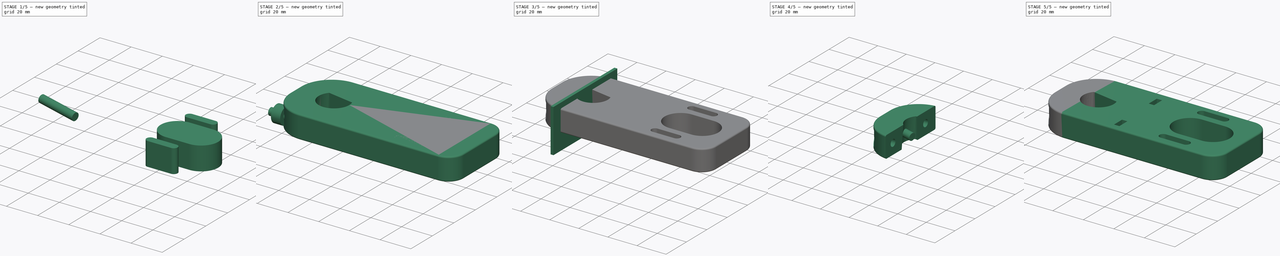
[diagram: build sequence overview — one tinted view per stage of 5, left to right]
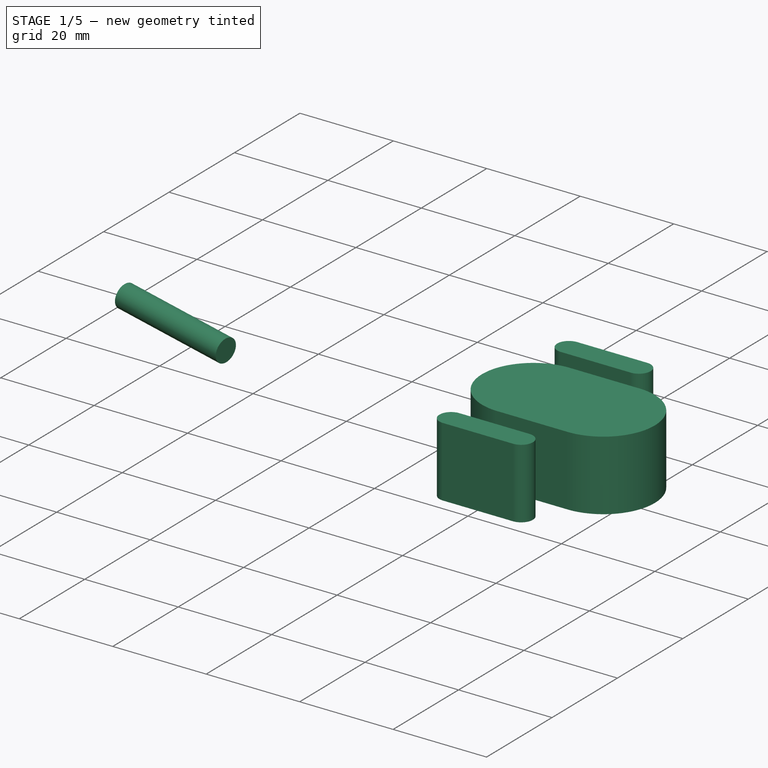
[diagram: stage 1 of 5 — iso view after this stage's code; geometry added in this stage tinted green]
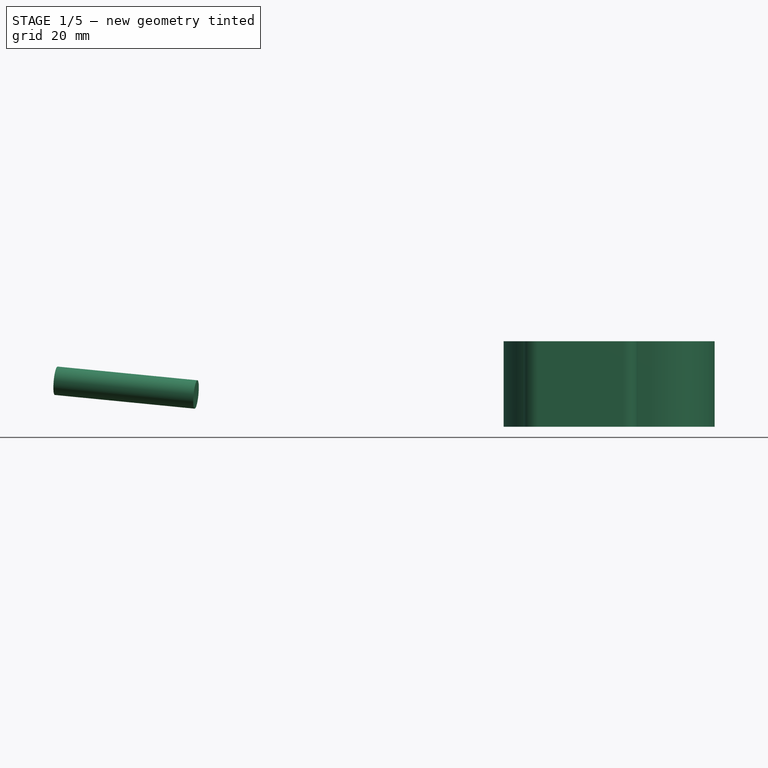
[diagram: stage 1 of 5 — front view after this stage's code; geometry added in this stage tinted green]
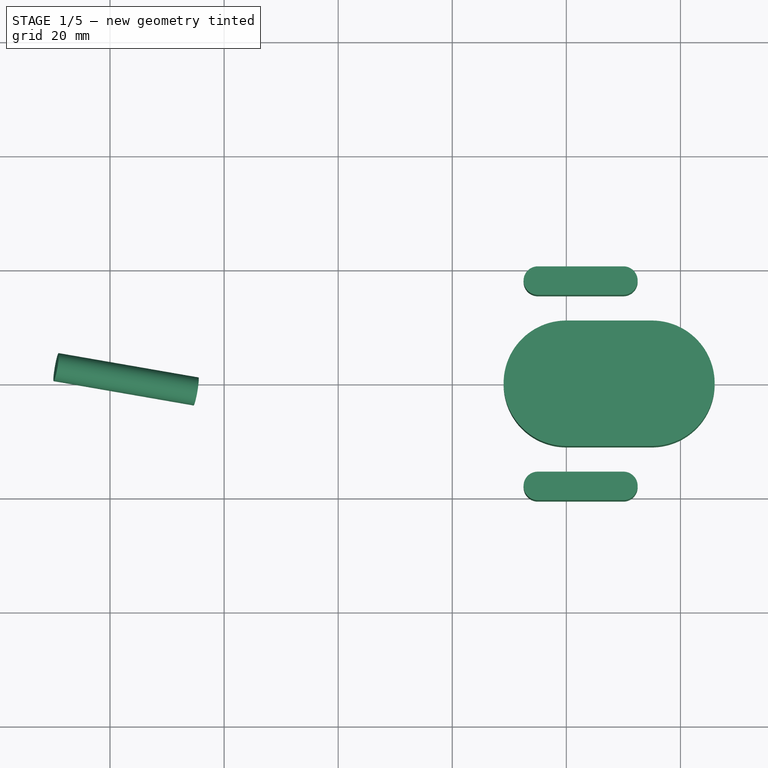
[diagram: stage 1 of 5 — top view after this stage's code; geometry added in this stage tinted green]
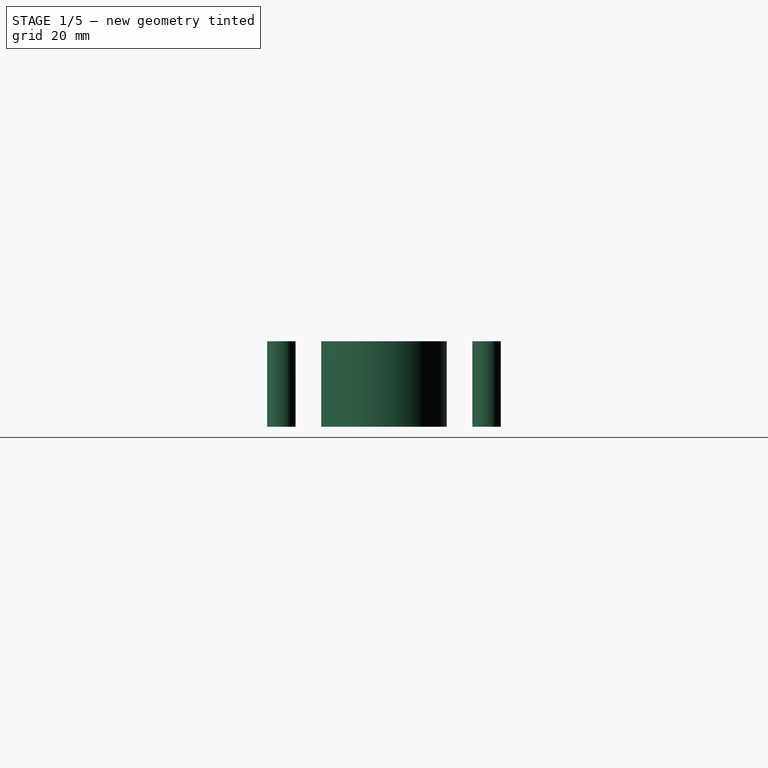
[diagram: stage 1 of 5 — right view after this stage's code; geometry added in this stage tinted green]
FCSTD DOCUMENT  (FreeCAD 0.19R21329 (Git))
Label: ElectricLongboard_MotorMount
License: All rights reserved
LicenseURL: http://en.wikipedia.org/wiki/All_rights_reserved
objects: Sketcher::SketchObject×8, Part::Extrusion×7, Part::Cut×6, Part::FeaturePython×5, PartDesign::ShapeBinder×3, Spreadsheet::Sheet×1, PartDesign::Pad×1, Part::Fillet×1, PartDesign::Body×1, App::DocumentObjectGroup×1
note: 33 computed .brp shape members not serialized (recipe doc carries the construction recipe); baked Part::Feature solids carry a one-line shape summary decoded from their .brp

FEATURE [Sketcher::SketchObject] Sketch  label="Rectangle"
  MapMode = 5
  Support = -> [XY_Plane]
  expr: Constraints[8] = (<<vars>>.radius1 + <<vars>>.aroundhole) * 2
  expr: Constraints[11] = <<vars>>.radius1 + <<vars>>.aroundhole
  expr: Constraints[10] = <<vars>>.radius1 + <<vars>>.aroundhole
  sketch-geometry (4):
    g0: LineSegment StartX=-25 StartY=25 StartZ=0 EndX=95 EndY=25 EndZ=0
    g1: LineSegment StartX=95 StartY=25 StartZ=0 EndX=95 EndY=-25 EndZ=0
    g2: LineSegment StartX=95 StartY=-25 StartZ=0 EndX=-25 EndY=-25 EndZ=0
    g3: LineSegment StartX=-25 StartY=-25 StartZ=0 EndX=-25 EndY=25 EndZ=0
  constraints (12):
    c: Coincident(g0,g1)
    c: Coincident(g1,g2)
    c: Coincident(g2,g3)
    c: Coincident(g3,g0)
    c: Horizontal(g0)
    c: Horizontal(g2)
    c: Vertical(g1)
    c: Vertical(g3)
    c: DistanceY(g3,g3) = 50
    c: DistanceX(g0,g0) = 120
    c: DistanceY(g-1,g0) = 25
    c: DistanceX(g0,g-1) = 25
FEATURE [Spreadsheet::Sheet] Spreadsheet  label="vars"
  cells = A1=radius1; B1(radius1)=10; A2=radius2; B2(radius2)=10; A3=space around hole; B3(aroundhole)=15; A4=thickness; B4(thick)=15; A5=radius motor; B5(radius_motor)=34; A6=motor fixation holes distance; B6(motorfixholesdist)=36
FEATURE [PartDesign::Pad] Pad
  AllowMultiFace = false
  Length = 15
  Length2 = 100
  Profile = -> Sketch
  Type = 0
  expr: Length = <<vars>>.thick
FEATURE [Sketcher::SketchObject] Sketch001  label="Hole"
  AttachmentOffset = pos=(0,0,0) rot=(0,0,1;-0.174533rad)
  MapMode = 5
  Placement = pos=(0,0,15) rot=(0,0,1;6.10865rad)
  Support = -> [Pad]
  expr: Constraints[0] = <<vars>>.radius1
  expr: Constraints[5] = <<vars>>.radius1 - 5
  sketch-geometry (2):
    g0: ArcOfCircle CenterX=0 CenterY=0 CenterZ=0 NormalX=0 NormalY=0 NormalZ=1 AngleXU=0 Radius=10 StartAngle=2.61799 EndAngle=6.80678
    g1: LineSegment StartX=-8.66025 StartY=5 StartZ=0 EndX=8.66025 EndY=5 EndZ=0
  constraints (6):
    c: Radius(g0) = 10
    c: Coincident(g0,g-1)
    c: Horizontal(g1)
    c: Coincident(g1,g0)
    c: Coincident(g1,g0)
    c: DistanceY(g0,g0) = 5
FEATURE [Part::Extrusion] Extrude001  label="ExtrudeHole"
  Base = -> Sketch001
  Dir = (0.03,0,0.5)
  DirMode = 0
  FaceMakerClass = Part::FaceMakerBullseye
  LengthFwd = 0
  LengthRev = 30
  Solid = true
  Symmetric = false
  TaperAngleRev = 3
  expr: LengthRev = <<vars>>.thick * 2
FEATURE [Sketcher::SketchObject] Sketch006  label="SketchHolesMotor"
  MapMode = 5
  Placement = pos=(0,0,15) rot=(0,0,1;0rad)
  expr: Constraints[21] = <<vars>>.motorfixholesdist
  expr: Constraints[1] = <<vars>>.motorfixholesdist / 2
  sketch-geometry (12):
    g0: ArcOfCircle CenterX=55 CenterY=-18 CenterZ=0 NormalX=0 NormalY=0 NormalZ=1 AngleXU=0 Radius=2.5 StartAngle=1.5708 EndAngle=4.71239
    g1: ArcOfCircle CenterX=70 CenterY=-18 CenterZ=0 NormalX=0 NormalY=0 NormalZ=1 AngleXU=0 Radius=2.5 StartAngle=4.71239 EndAngle=7.85398
    g2: LineSegment StartX=55 StartY=-15.5 StartZ=0 EndX=70 EndY=-15.5 EndZ=0
    g3: LineSegment StartX=55 StartY=-20.5 StartZ=0 EndX=70 EndY=-20.5 EndZ=0
    g4: ArcOfCircle CenterX=55 CenterY=18 CenterZ=0 NormalX=0 NormalY=0 NormalZ=1 AngleXU=0 Radius=2.5 StartAngle=1.5708 EndAngle=4.71239
    g5: ArcOfCircle CenterX=70 CenterY=18 CenterZ=0 NormalX=0 NormalY=0 NormalZ=1 AngleXU=0 Radius=2.5 StartAngle=4.71239 EndAngle=7.85398
    g6: LineSegment StartX=55 StartY=20.5 StartZ=0 EndX=70 EndY=20.5 EndZ=0
    g7: LineSegment StartX=55 StartY=15.5 StartZ=0 EndX=70 EndY=15.5 EndZ=0
    g8: ArcOfCircle CenterX=60 CenterY=0 CenterZ=0 NormalX=0 NormalY=0 NormalZ=1 AngleXU=0 Radius=11 StartAngle=1.5708 EndAngle=4.71239
    g9: ArcOfCircle CenterX=75 CenterY=0 CenterZ=0 NormalX=0 NormalY=0 NormalZ=1 AngleXU=0 Radius=11 StartAngle=4.71239 EndAngle=7.85398
    g10: LineSegment StartX=60 StartY=11 StartZ=0 EndX=75 EndY=11 EndZ=0
    g11: LineSegment StartX=60 StartY=-11 StartZ=0 EndX=75 EndY=-11 EndZ=0
  constraints (42):
    c: Radius(g0) = 2.5
    c: DistanceY(g0,g-1) = 18
    c: Equal(g1,g0)
    c: DistanceY(g1,g0) = 0
    c: Coincident(g0,g2)
    c: Coincident(g0,g3)
    c: Coincident(g1,g3)
    c: Coincident(g1,g2)
    c: Radius(g4) = 2.5
    c: Equal(g4,g5)
    c: DistanceY(g4,g5) = 0
    c: Coincident(g5,g7)
    c: Coincident(g5,g6)
    c: DistanceX(g4,g4) = 0
    c: DistanceX(g4,g4) = 0
    c: DistanceX(g5,g5) = 0
    c: DistanceX(g5,g5) = 0
    c: Coincident(g4,g6)
    c: Coincident(g4,g7)
    c: DistanceX(g4,g0) = 0
    c: DistanceX(g5,g1) = 0
    c: DistanceY(g0,g4) = 36
    c: DistanceX(g0,g0) = 0
    c: DistanceX(g0,g0) = 0
    c: DistanceX(g1,g1) = 0
    c: DistanceX(g1,g1) = 0
    c: DistanceY(g8,g9) = 0
    c: Radius(g8) = 11
    c: Equal(g8,g9)
    c: Coincident(g8,g10)
    c: Coincident(g8,g11)
    c: Coincident(g9,g11)
    c: Coincident(g9,g10)
    c: DistanceX(g8,g8) = 0
    c: DistanceX(g9,g9) = 0
    c: DistanceX(g8,g8) = 0
    c: DistanceX(g9,g9) = 0
    c: DistanceY(g-1,g8) = 0
    c: DistanceX(g-1,g8) = 60
    c: DistanceX(g8,g4) = -5
    c: DistanceX(g8,g9) = 15
    c: DistanceX(g5,g9) = 5
FEATURE [Part::Extrusion] Extrude006  label="ExtrudeHolesMotor"
  Base = -> Sketch006
  Dir = (0,0,1)
  DirMode = 2
  FaceMakerClass = Part::FaceMakerBullseye
  LengthFwd = 0
  LengthRev = 15
  Solid = true
  Symmetric = false
  expr: LengthRev = <<vars>>.thick
FEATURE [Sketcher::SketchObject] Sketch008  label="Sketch_TruckHole"
  AttachmentOffset = pos=(0,0,0) rot=(0,1,0;1.5708rad)
  MapMode = 45
  Placement = pos=(-4.18731,6.47725,-0.486573) rot=(-0.518899,0.642939,-0.563359;2.22168rad)
  Support = -> [Extrude001]
  sketch-geometry (1):
    g0: Circle CenterX=7.5 CenterY=-6.5 CenterZ=0 NormalX=0 NormalY=0 NormalZ=1 AngleXU=0 Radius=2.5
  constraints (3):
    c: Diameter(g0) = 5
    c: DistanceX(g0,g-1) = -7.5
    c: DistanceY(g-1,g0) = -6.5
FEATURE [Part::Extrusion] Extrude009  label="Extrude_TruckHole"
  Base = -> Sketch008
  Dir = (0.980933,-0.168853,-0.0962242)
  DirMode = 2
  FaceMakerClass = Part::FaceMakerBullseye
  LengthFwd = 0
  LengthRev = 25
  Solid = true
  Symmetric = false
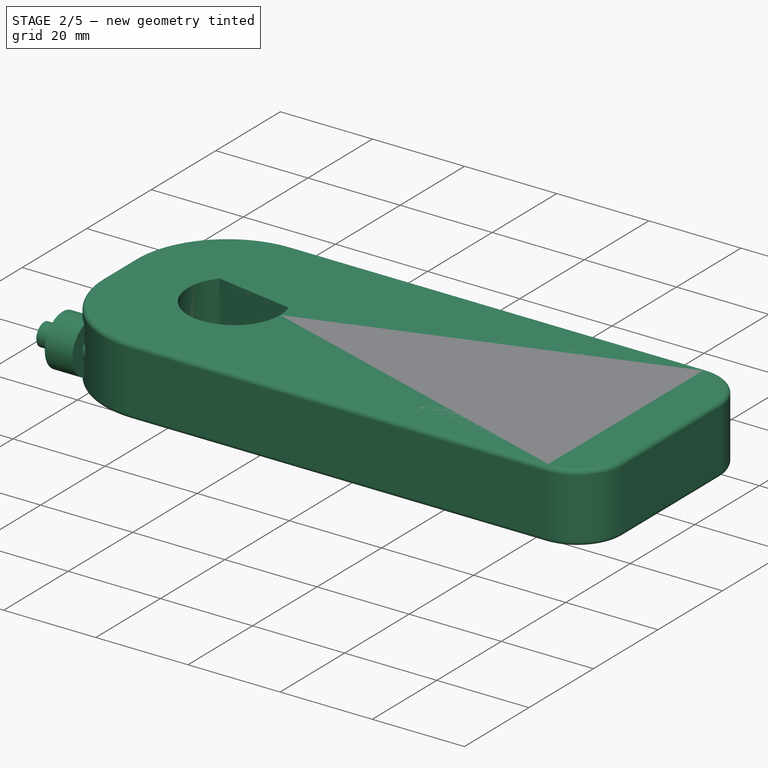
[diagram: stage 2 of 5 — iso view after this stage's code; geometry added in this stage tinted green]
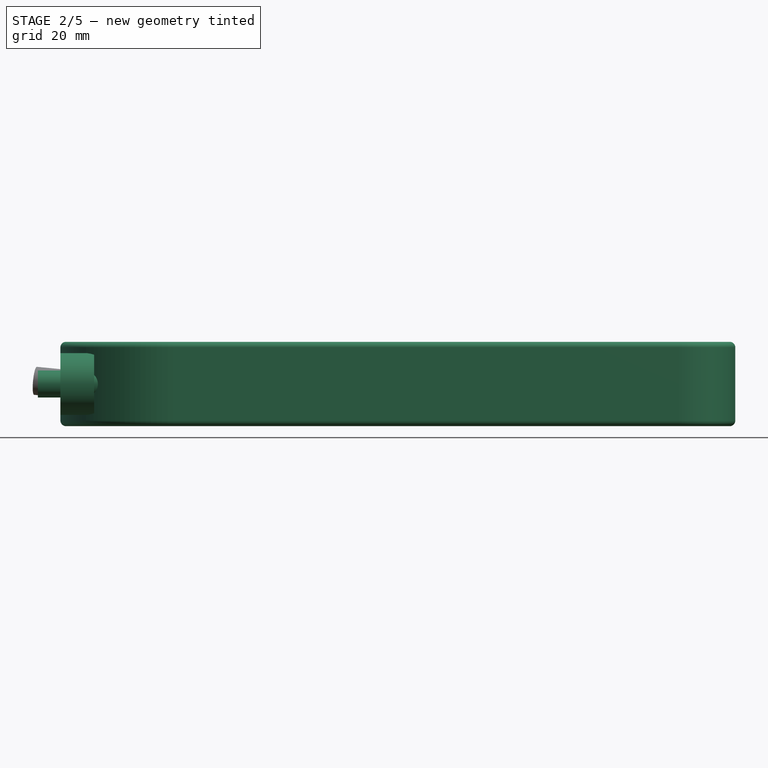
[diagram: stage 2 of 5 — front view after this stage's code; geometry added in this stage tinted green]
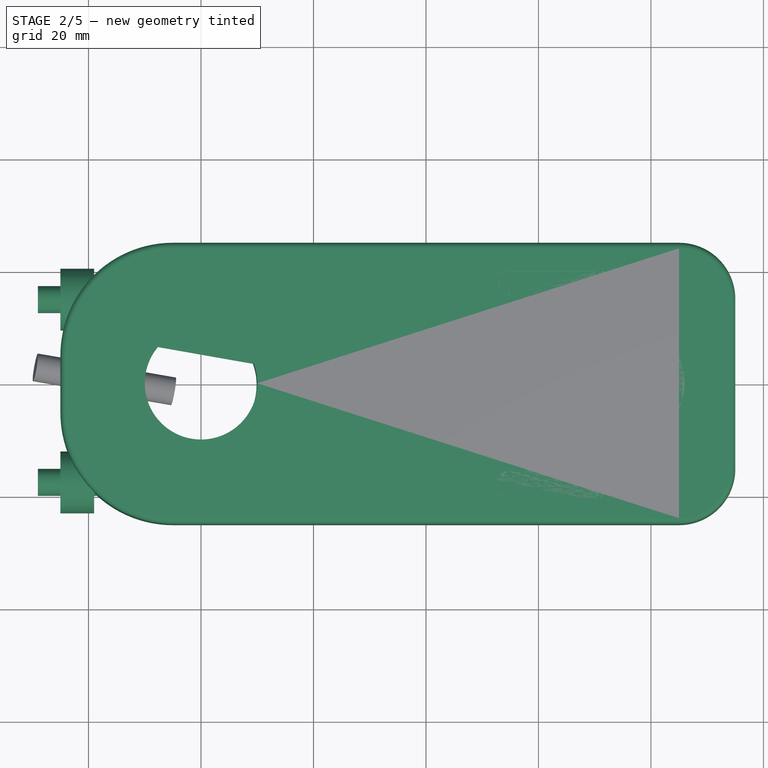
[diagram: stage 2 of 5 — top view after this stage's code; geometry added in this stage tinted green]
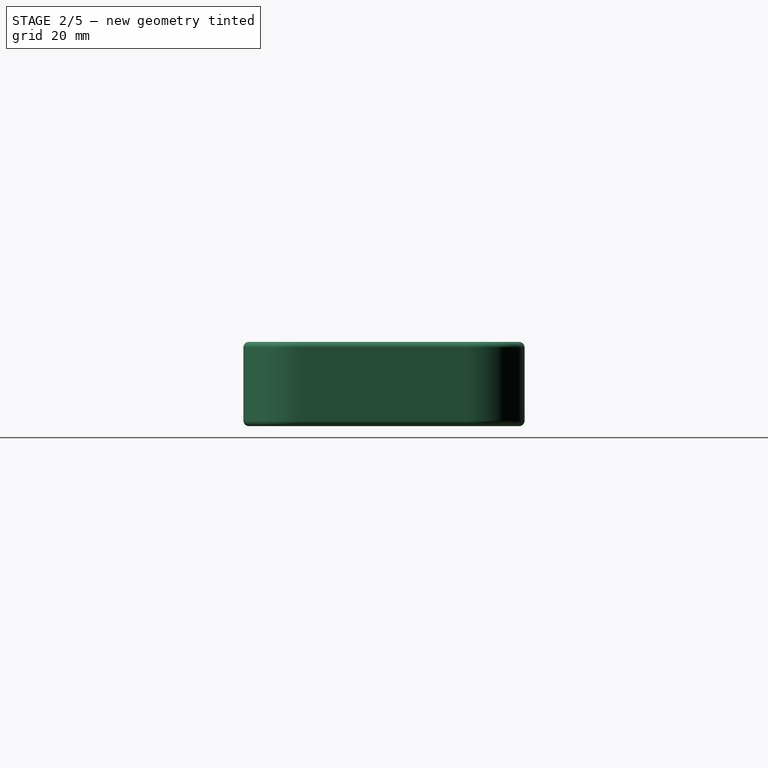
[diagram: stage 2 of 5 — right view after this stage's code; geometry added in this stage tinted green]
FEATURE [Sketcher::SketchObject] Sketch003  label="SketchScrewHoles"
  MapMode = 2
  Placement = pos=(-19,0,0) rot=(0.57735,-0.57735,-0.57735;2.0944rad)
  Support = -> [Sketch003]
  expr: Constraints[1] = <<vars>>.thick / 2
  expr: Constraints[4] = <<vars>>.radius1 + <<vars>>.aroundhole / 2
  expr: Constraints[3] = <<vars>>.radius1 + <<vars>>.aroundhole / 3
  expr: Constraints[2] = <<vars>>.thick / 2
  sketch-geometry (2):
    g0: Circle CenterX=-15 CenterY=7.5 CenterZ=0 NormalX=0 NormalY=0 NormalZ=1 AngleXU=0 Radius=2.4
    g1: Circle CenterX=17.5 CenterY=7.5 CenterZ=0 NormalX=0 NormalY=0 NormalZ=1 AngleXU=0 Radius=2.4
  constraints (6):
    c: Radius(g0) = 2.4
    c: DistanceY(g-1,g0) = 7.5
    c: DistanceY(g-1,g1) = 7.5
    c: DistanceX(g0,g-1) = 15
    c: DistanceX(g-1,g1) = 17.5
    c: Equal(g0,g1)
FEATURE [Part::Extrusion] Extrude003  label="ExtrudeScrewHoles"
  Base = -> Sketch003
  Dir = (-1,0,0)
  DirMode = 2
  FaceMakerClass = Part::FaceMakerBullseye
  LengthFwd = 10
  LengthRev = 62
  Solid = true
  Symmetric = false
FEATURE [Part::Fillet] Fillet
  Base = -> Pad
  Edges = 12 edges: [Edge1 r=20,Edge2 r=10,Edge3 r=1,Edge4 r=1,Edge5 r=10,Edge6 r=1,Edge7 r=1,Edge8 r=20,Edge9 r=1,Edge10 r=1,Edge11 r=1,Edge12 r=1]
FEATURE [Part::Cut] Cut
  Base = -> Fillet
  Tool = -> Extrude001
FEATURE [PartDesign::ShapeBinder] CopyCut002
  TraceSupport = false
FEATURE [Sketcher::SketchObject] Sketch004  label="SketchScrewHolesHead"
  MapMode = 5
  Placement = pos=(-25,0,0) rot=(0.57735,-0.57735,-0.57735;2.0944rad)
  Support = -> [CopyCut002]
  expr: Constraints[0] = <<vars>>.radius1 + <<vars>>.aroundhole / 3
  expr: Constraints[1] = <<vars>>.thick / 2
  expr: Constraints[3] = -<<vars>>.radius1 - <<vars>>.aroundhole / 2
  expr: Constraints[4] = <<vars>>.thick / 2
  sketch-geometry (2):
    g0: Circle CenterX=-15 CenterY=7.5 CenterZ=0 NormalX=0 NormalY=0 NormalZ=1 AngleXU=0 Radius=5.5
    g1: Circle CenterX=17.5 CenterY=7.5 CenterZ=0 NormalX=0 NormalY=0 NormalZ=1 AngleXU=0 Radius=5.5
  constraints (6):
    c: DistanceX(g0,g-1) = 15
    c: DistanceY(g-1,g0) = 7.5
    c: Radius(g0) = 5.5
    c: DistanceX(g1,g-1) = -17.5
    c: DistanceY(g-1,g1) = 7.5
    c: Equal(g0,g1)
FEATURE [Part::Extrusion] Extrude005  label="ExtrudeScrewHolesHead"
  Base = -> Sketch004
  Dir = (-1,0,0)
  DirMode = 2
  FaceMakerClass = Part::FaceMakerBullseye
  LengthFwd = 0
  LengthRev = 6
  Solid = true
  Symmetric = false
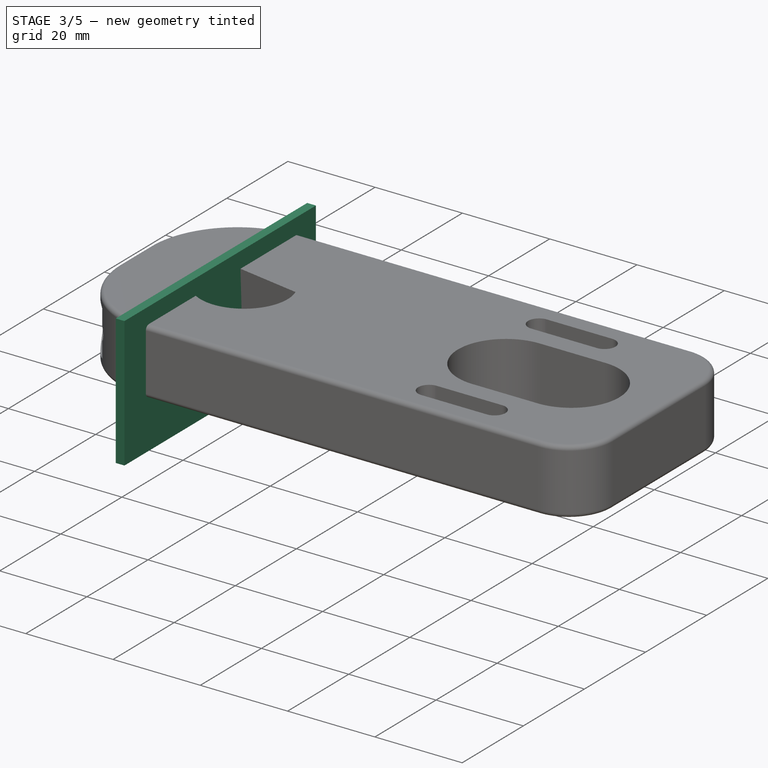
[diagram: stage 3 of 5 — iso view after this stage's code; geometry added in this stage tinted green]
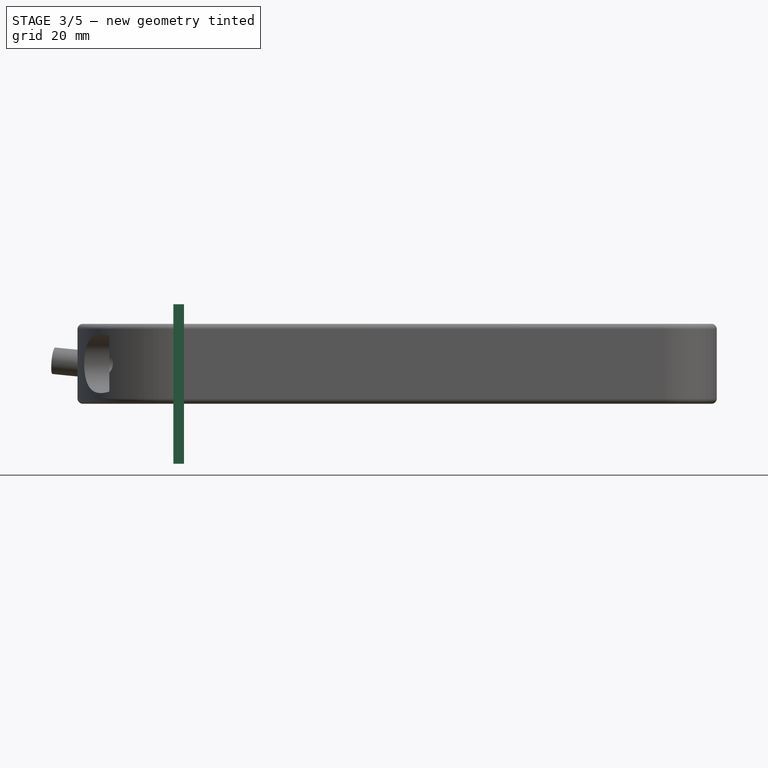
[diagram: stage 3 of 5 — front view after this stage's code; geometry added in this stage tinted green]
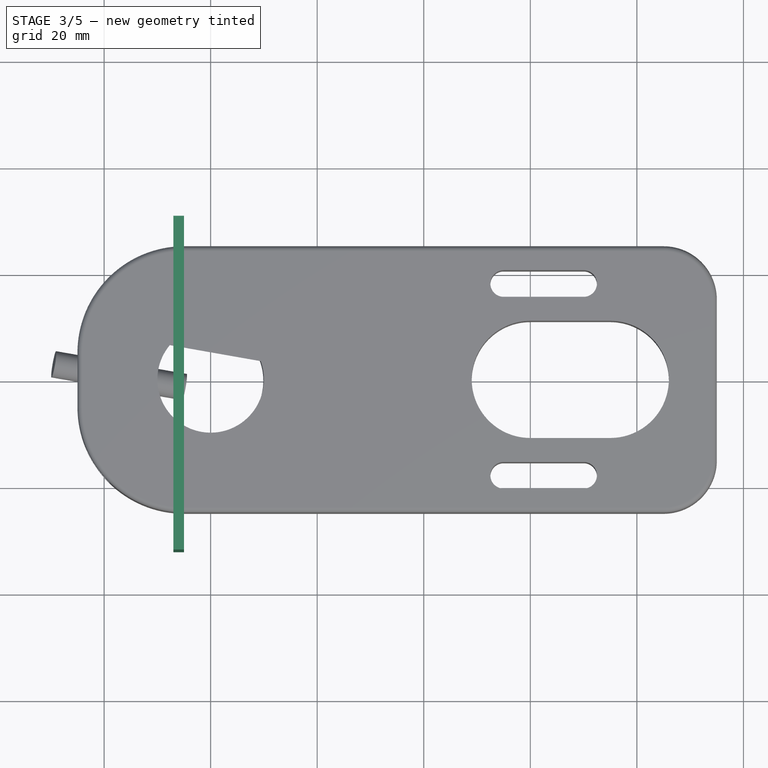
[diagram: stage 3 of 5 — top view after this stage's code; geometry added in this stage tinted green]
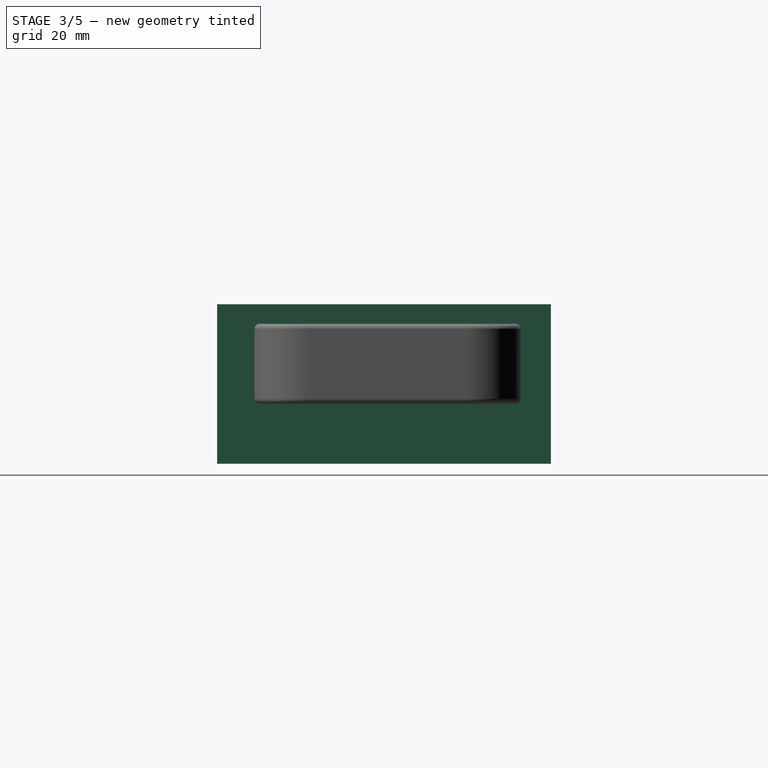
[diagram: stage 3 of 5 — right view after this stage's code; geometry added in this stage tinted green]
FEATURE [PartDesign::ShapeBinder] CopyCut
  TraceSupport = false
FEATURE [Sketcher::SketchObject] Sketch002  label="CutThroughHole"
  AttachmentOffset = pos=(0,0,-14) rot=(0,0,1;0rad)
  MapMode = 5
  Placement = pos=(-5,0,0) rot=(0.57735,-0.57735,-0.57735;2.0944rad)
  Support = -> [CopyCut]
  expr: .AttachmentOffset.Base.z = -<<vars>>.aroundhole + 1
  sketch-geometry (4):
    g0: LineSegment StartX=-30.656 StartY=18.6634 StartZ=0 EndX=31.9984 EndY=18.6634 EndZ=0
    g1: LineSegment StartX=31.9984 StartY=18.6634 StartZ=0 EndX=31.9984 EndY=-11.2528 EndZ=0
    g2: LineSegment StartX=31.9984 StartY=-11.2528 StartZ=0 EndX=-30.656 EndY=-11.2528 EndZ=0
    g3: LineSegment StartX=-30.656 StartY=-11.2528 StartZ=0 EndX=-30.656 EndY=18.6634 EndZ=0
  constraints (8):
    c: Coincident(g0,g1)
    c: Coincident(g1,g2)
    c: Coincident(g2,g3)
    c: Coincident(g3,g0)
    c: Horizontal(g0)
    c: Horizontal(g2)
    c: Vertical(g1)
    c: Vertical(g3)
FEATURE [Part::Extrusion] Extrude  label="ExtrudeCutThroughHole"
  Base = -> Sketch002
  Dir = (-1,0,0)
  DirMode = 2
  FaceMakerClass = Part::FaceMakerBullseye
  LengthFwd = 2
  LengthRev = 0
  Solid = true
  Symmetric = false
FEATURE [Part::Cut] Cut001
  Base = -> Cut
  Tool = -> Extrude003
FEATURE [Part::Cut] Cut002
  Base = -> Cut001
  Tool = -> Extrude005
FEATURE [Part::Cut] Cut003
  Base = -> Cut002
  Tool = -> Extrude006
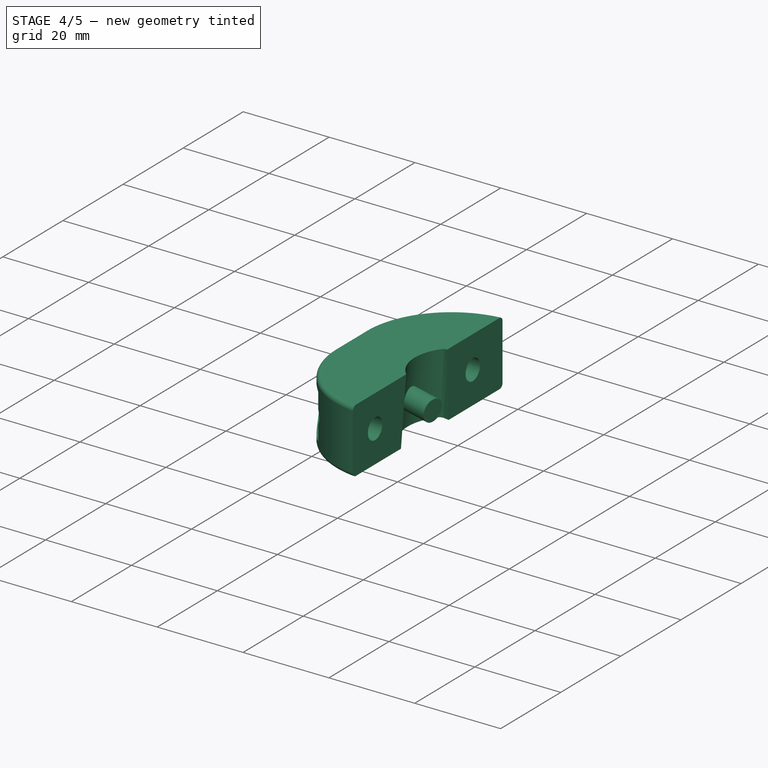
[diagram: stage 4 of 5 — iso view after this stage's code; geometry added in this stage tinted green]
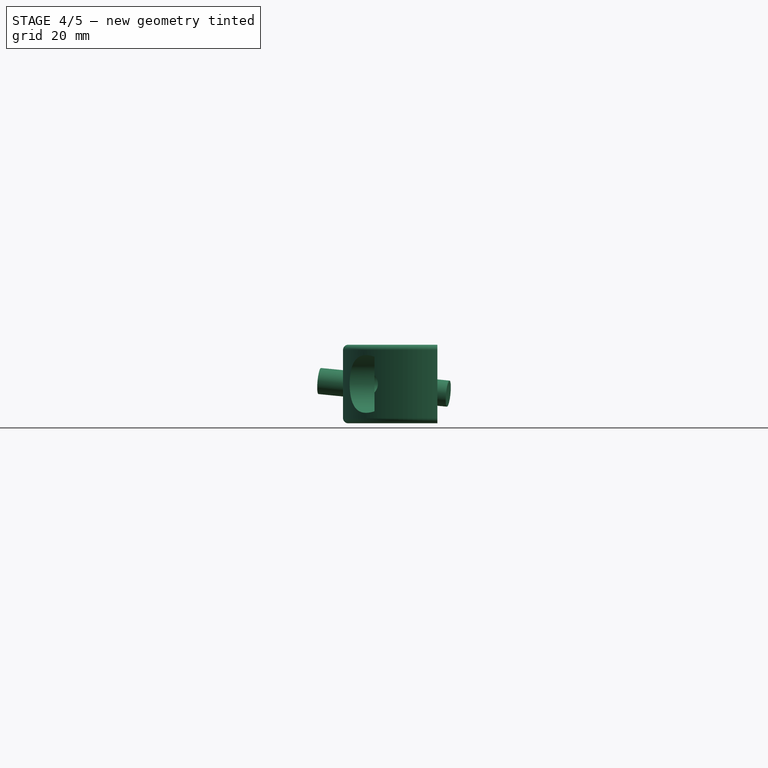
[diagram: stage 4 of 5 — front view after this stage's code; geometry added in this stage tinted green]
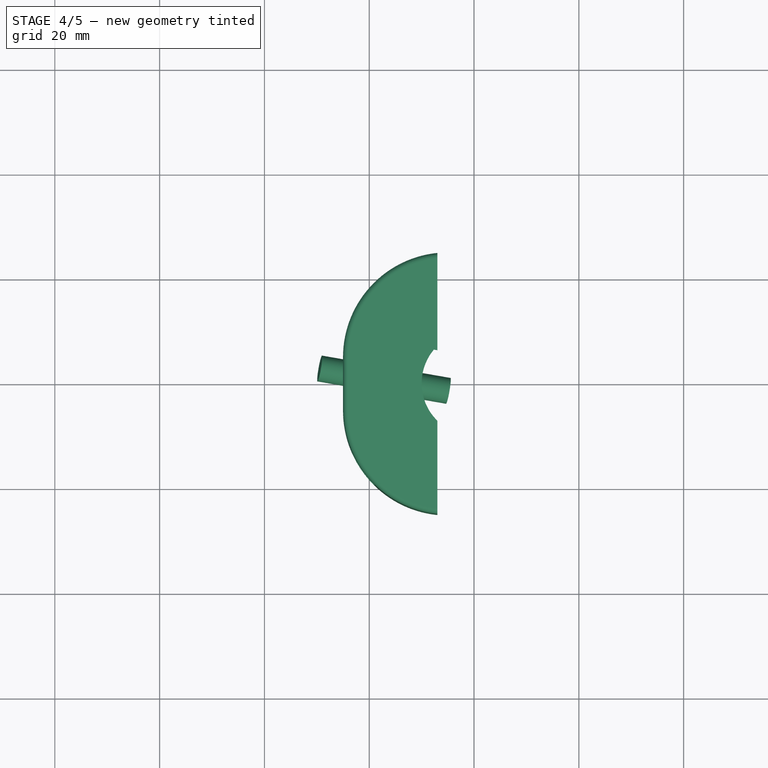
[diagram: stage 4 of 5 — top view after this stage's code; geometry added in this stage tinted green]
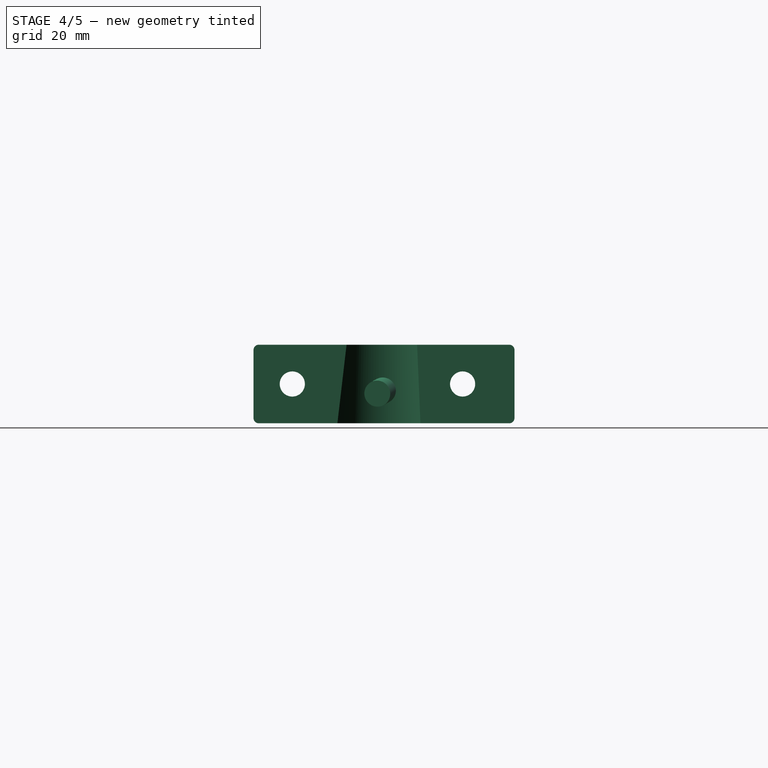
[diagram: stage 4 of 5 — right view after this stage's code; geometry added in this stage tinted green]
FEATURE [PartDesign::ShapeBinder] ReferenceExtrude
  Support = -> [Extrude]
  TraceSupport = false
FEATURE [Sketcher::SketchObject] Sketch007  label="SketchNutsHoles"
  ExternalGeometry = -> [Sketch003]
  MapMode = 5
  Placement = pos=(-5,0,0) rot=(0.57735,0.57735,0.57735;2.0944rad)
  Support = -> [ReferenceExtrude]
  sketch-geometry (12):
    g0: LineSegment StartX=-21.25 StartY=28.4525 StartZ=0 EndX=-13.75 EndY=28.4525 EndZ=0
    g1: LineSegment StartX=-13.75 StartY=28.4525 StartZ=0 EndX=-13.75 EndY=7.39001 EndZ=0
    g2: LineSegment StartX=-21.25 StartY=7.60999 StartZ=0 EndX=-21.25 EndY=28.4525 EndZ=0
    g3: LineSegment StartX=-21.25 StartY=7.60999 StartZ=0 EndX=-21.25 EndY=2.60999 EndZ=0
    g4: LineSegment StartX=-21.25 StartY=2.60999 StartZ=0 EndX=-13.75 EndY=2.60999 EndZ=0
    g5: LineSegment StartX=-13.75 StartY=2.60999 StartZ=0 EndX=-13.75 EndY=7.39001 EndZ=0
    g6: LineSegment StartX=11.25 StartY=28.1657 StartZ=0 EndX=18.75 EndY=28.1657 EndZ=0
    g7: LineSegment StartX=18.75 StartY=28.1657 StartZ=0 EndX=18.75 EndY=7.4918 EndZ=0
    g8: LineSegment StartX=11.25 StartY=7.5082 StartZ=0 EndX=11.25 EndY=28.1657 EndZ=0
    g9: LineSegment StartX=11.25 StartY=7.5082 StartZ=0 EndX=11.25 EndY=2.5082 EndZ=0
    g10: LineSegment StartX=11.25 StartY=2.5082 StartZ=0 EndX=18.75 EndY=2.5082 EndZ=0
    g11: LineSegment StartX=18.75 StartY=2.5082 StartZ=0 EndX=18.75 EndY=7.4918 EndZ=0
  constraints (30):
    c: Coincident(g0,g1)
    c: Coincident(g2,g0)
    c: Horizontal(g0)
    c: Vertical(g1)
    c: Vertical(g2)
    c: Vertical(g3)
    c: Coincident(g4,g3)
    c: Coincident(g5,g1)
    c: Vertical(g5)
    c: Horizontal(g4)
    c: Coincident(g4,g5)
    c: DistanceY(g3,g3) = 5
    c: Symmetric(g2,g1,g-3)
    c: DistanceX(g4,g4) = 7.5
    c: Coincident(g6,g7)
    c: Coincident(g8,g6)
    c: Horizontal(g6)
    c: Vertical(g7)
    c: Vertical(g8)
    c: Vertical(g9)
    c: Coincident(g10,g9)
    c: Coincident(g11,g7)
    c: Vertical(g11)
    c: Horizontal(g10)
    c: Coincident(g10,g11)
    c: Equal(g3,g9) = 3.5
    c: Equal(g4,g10) = 5.8
    c: Symmetric(g8,g7,g-4)
    c: Coincident(g3,g2)
    c: Coincident(g9,g8)
FEATURE [PartDesign::Body] Body
  Group = -> [Sketch,Pad,Sketch001,CopyCut,Sketch002,Sketch003,CopyCut002,Sketch004,Sketch006,ReferenceExtrude,Sketch007]
  Origin = -> Origin
  Tip = -> Pad
FEATURE [Part::Extrusion] Extrude007  label="ExtrudeNutsHoles"
  Base = -> Sketch007
  Dir = (1,0,0)
  DirMode = 2
  FaceMakerClass = Part::FaceMakerBullseye
  LengthFwd = 3.5
  LengthRev = 0
  Placement = pos=(30,0,0) rot=(0,0,1;0rad)
  Solid = true
  Symmetric = false
FEATURE [Part::Cut] Cut004
  Base = -> Cut003
  Tool = -> Extrude007
FEATURE [Part::FeaturePython] Slice  # WARN: FeaturePython — macro-defined, semantics opaque (R4)
  Base = -> Cut004
  Mode = 1
  Tolerance = 0
  Tools = -> [Extrude]
FEATURE [Part::FeaturePython] Slice_child2  label="Slice.2"  # WARN: FeaturePython — macro-defined, semantics opaque (R4)
  Base = -> Slice
  FilterType = 1
  Invert = false
  OverrideMaxVal = 0
  WindowFrom = 80
  WindowTo = 100
  items = 2
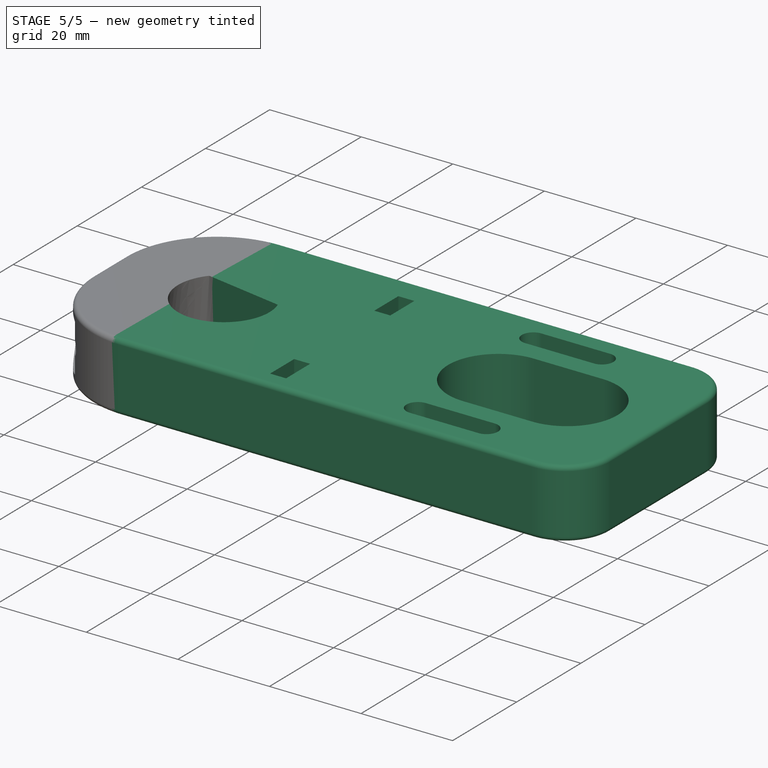
[diagram: stage 5 of 5 — iso view after this stage's code; geometry added in this stage tinted green]
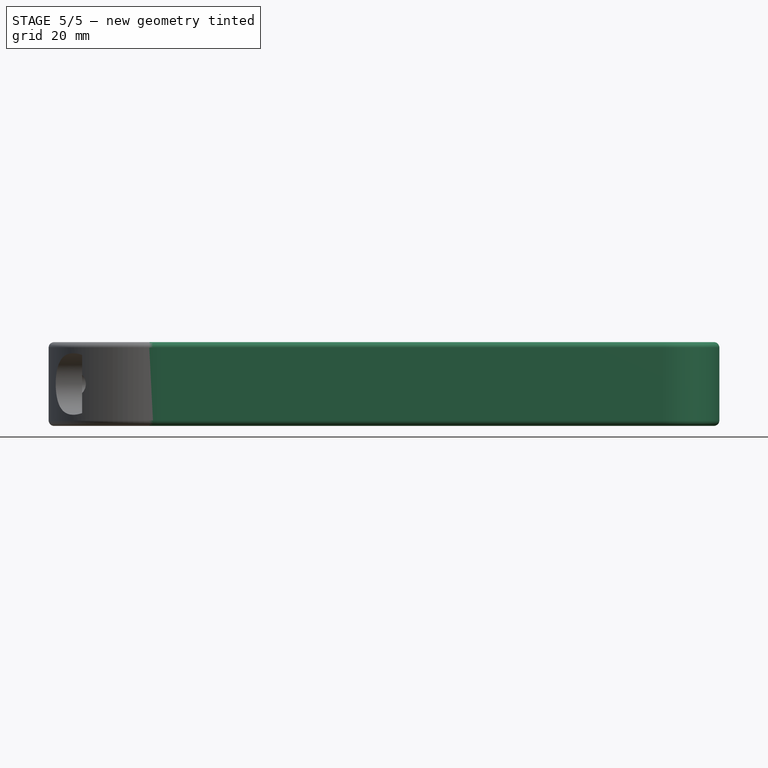
[diagram: stage 5 of 5 — front view after this stage's code; geometry added in this stage tinted green]
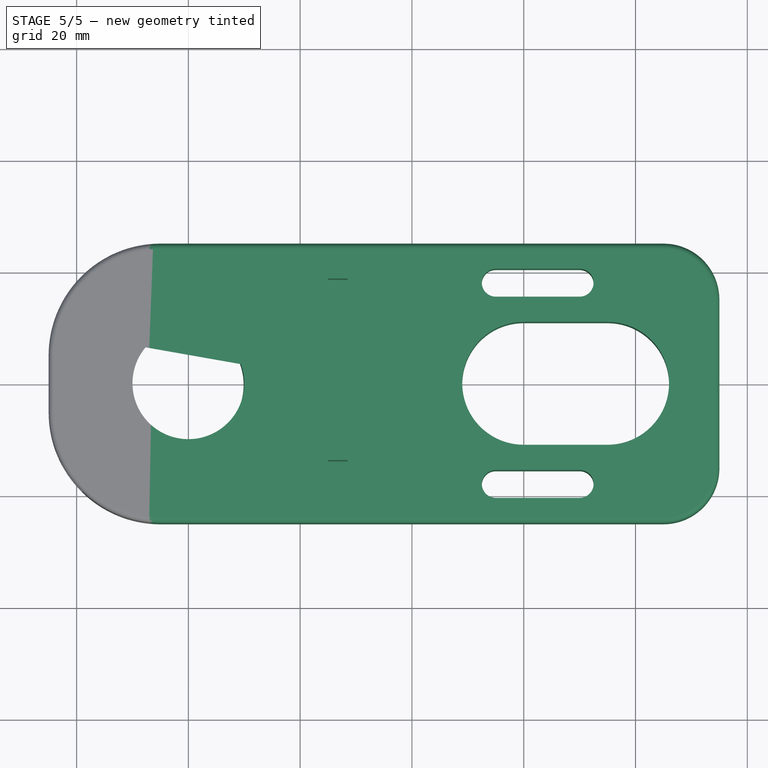
[diagram: stage 5 of 5 — top view after this stage's code; geometry added in this stage tinted green]
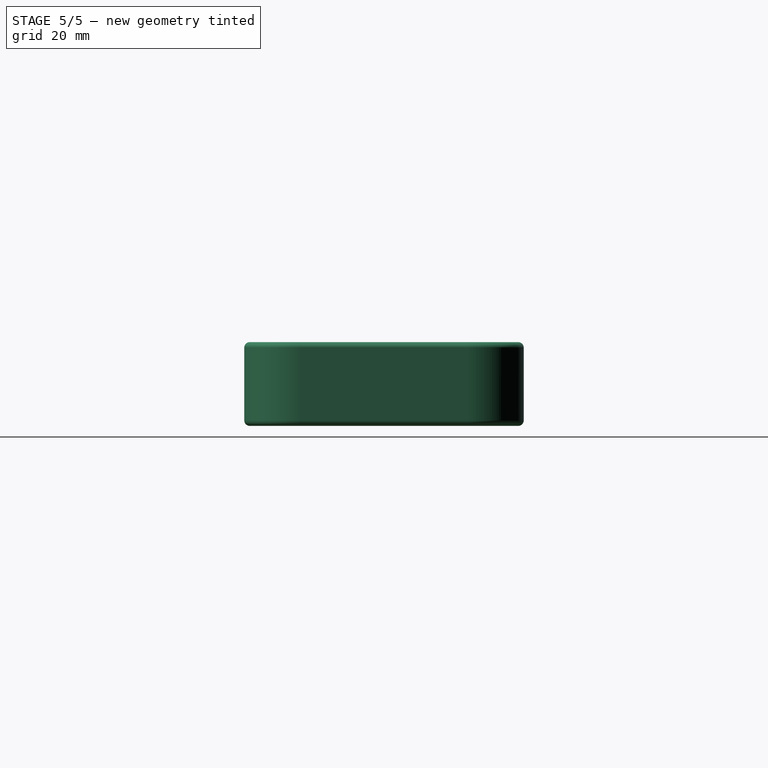
[diagram: stage 5 of 5 — right view after this stage's code; geometry added in this stage tinted green]
FEATURE [Part::FeaturePython] Slice_child0  label="Slice.0"  # WARN: FeaturePython — macro-defined, semantics opaque (R4)
  Base = -> Slice
  FilterType = 1
  Invert = false
  OverrideMaxVal = 0
  WindowFrom = 80
  WindowTo = 100
  items = 0
FEATURE [Part::FeaturePython] Slice_child1  label="Slice.1"  # WARN: FeaturePython — macro-defined, semantics opaque (R4)
  Base = -> Slice
  FilterType = 1
  Invert = false
  OverrideMaxVal = 0
  WindowFrom = 80
  WindowTo = 100
  items = 1
FEATURE [Part::FeaturePython] Slice_child3  label="Slice.3"  # WARN: FeaturePython — macro-defined, semantics opaque (R4)
  Base = -> Slice
  FilterType = 1
  Invert = false
  OverrideMaxVal = 0
  WindowFrom = 80
  WindowTo = 100
  items = 3
FEATURE [Part::Cut] Cut005
  Base = -> Slice_child2
  Tool = -> Extrude009
FEATURE [App::DocumentObjectGroup] GrExplode_Slice  label="Exploded Slice"
  Group = -> [Slice_child0,Slice_child1,Slice_child3,Cut005]
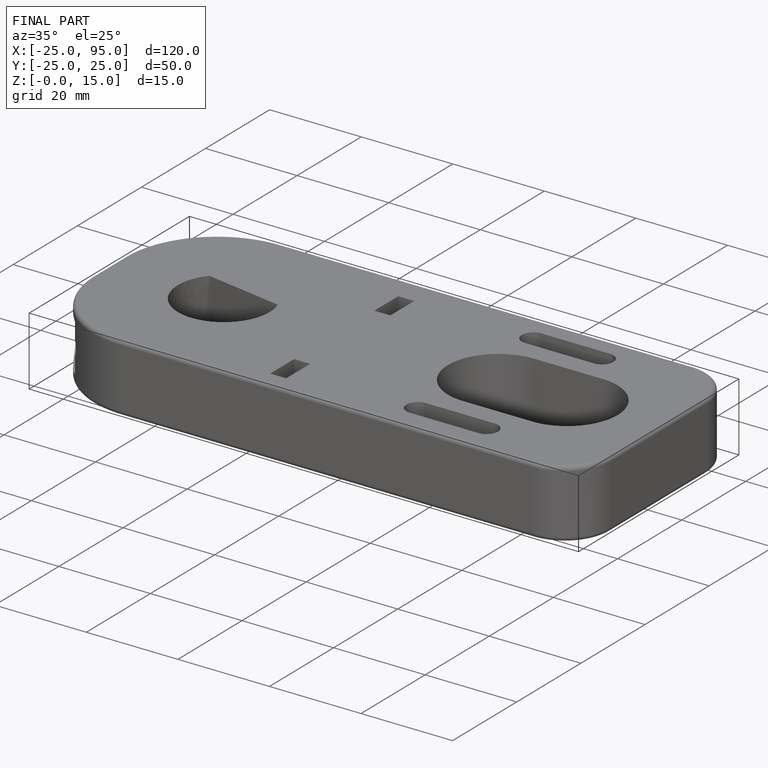
[diagram: finished part — iso view with bounding-box wireframe]
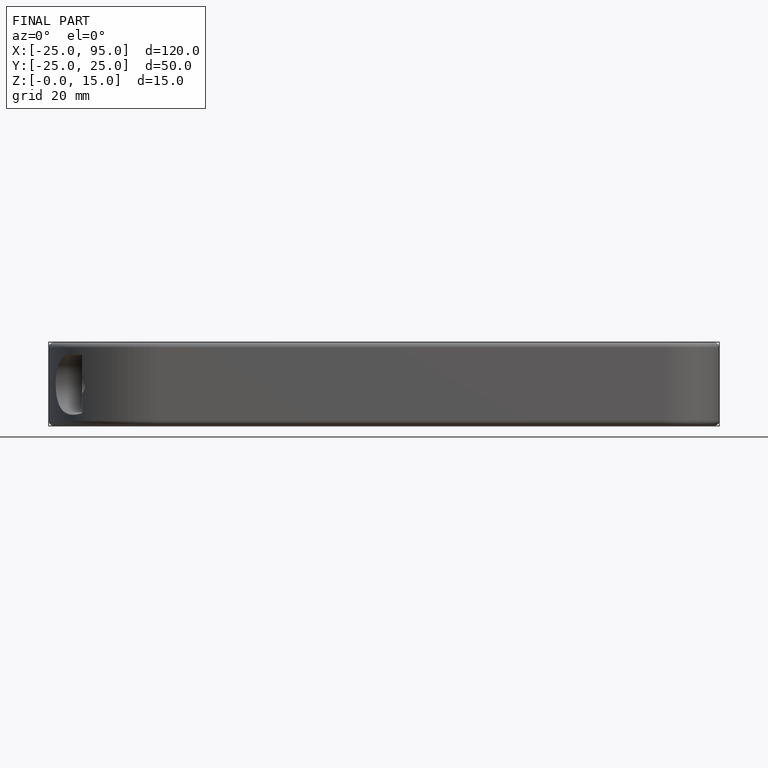
[diagram: finished part — front view with bounding-box wireframe]
